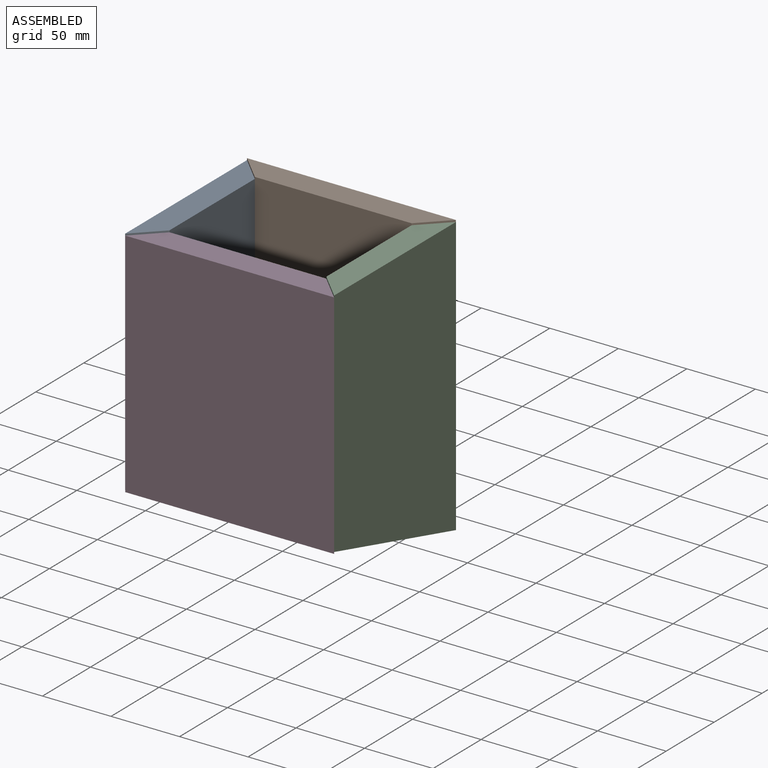
[diagram: assembled view]
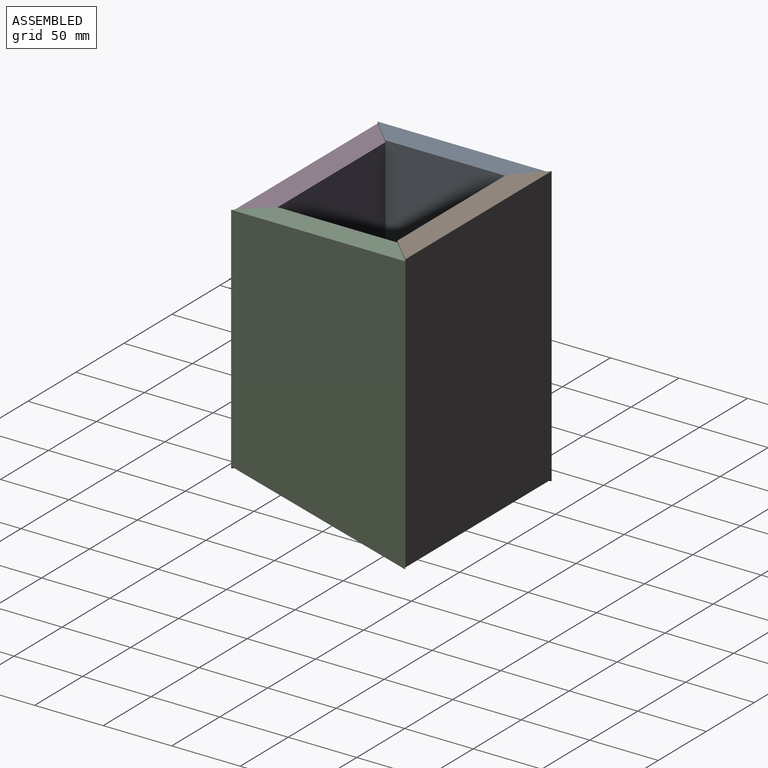
[diagram: assembled view, second angle]
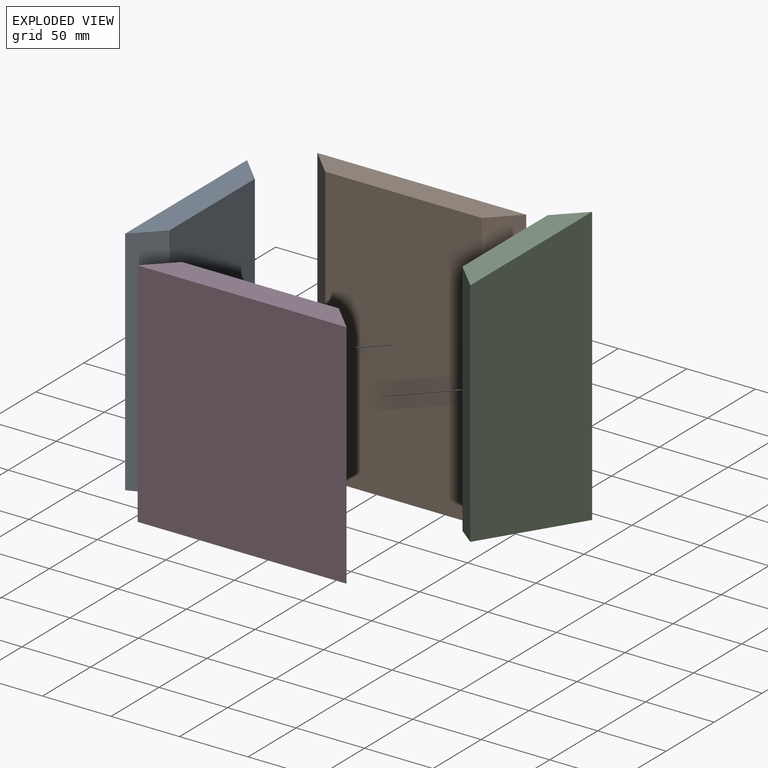
[diagram: exploded view]
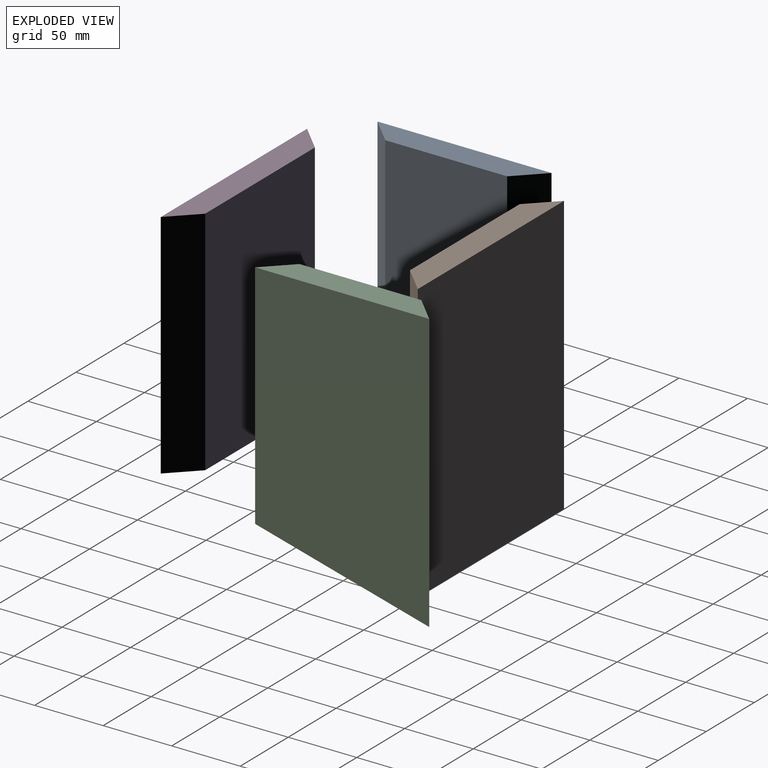
[diagram: exploded view, second angle]
ASSEMBLY  parts=4 mates=3
PART A: 6 faces, bbox 127x19.1x203.2 mm
  f0: plane 198.1x88.9mm, normal (0,-1,0), area 16551.9mm2, adj f1,f2,f4,f5
  f1: plane 127x34.03mm, normal (-0.26,0,-0.97), area 2129mm2, adj f0,f3,f4,f5
  f2: plane 127x19.05mm, normal (0,0,1), area 2056.4mm2, adj f0,f3,f4,f5
  f3: plane 203.2x127mm, normal (0,1,0), area 23645.5mm2, adj f1,f2,f4,f5
  f4: plane 203.2x19.05mm, normal (0.71,-0.71,0), area 5405.6mm2, adj f0,f1,f2,f3
  f5: plane 174.28x19.05mm, normal (-0.71,-0.71,0), area 4626.3mm2, adj f0,f1,f2,f3
PART B: 6 faces, bbox 152.4x19.1x203.2 mm
  f0: plane 152.4x19.05mm, normal (0,0,-1), area 2540.3mm2, adj f2,f3,f4,f5
  f1: plane 152.4x19.05mm, normal (0,0,1), area 2540.3mm2, adj f2,f3,f4,f5
  f2: plane 203.2x114.3mm, normal (0,-1,0), area 23225.8mm2, adj f0,f1,f4,f5
  f3: plane 203.2x152.4mm, normal (0,1,0), area 30967.7mm2, adj f0,f1,f4,f5
  f4: plane 203.2x19.05mm, normal (0.71,-0.71,0), area 5474.4mm2, adj f0,f1,f2,f3
  f5: plane 203.2x19.05mm, normal (-0.71,-0.71,0), area 5474.4mm2, adj f0,f1,f2,f3
PART C: 6 faces, bbox 127x19.1x203.2 mm
  f0: plane 127x19.05mm, normal (0,0,1), area 2056.4mm2, adj f2,f3,f4,f5
  f1: plane 127x34.03mm, normal (-0.26,0,-0.97), area 2129mm2, adj f2,f3,f4,f5
  f2: plane 198.1x88.9mm, normal (0,1,0), area 16551.9mm2, adj f0,f1,f4,f5
  f3: plane 203.2x127mm, normal (0,-1,0), area 23645.5mm2, adj f0,f1,f4,f5
  f4: plane 203.2x19.05mm, normal (0.71,0.71,0), area 5405.6mm2, adj f0,f1,f2,f3
  f5: plane 174.28x19.05mm, normal (-0.71,0.71,0), area 4626.3mm2, adj f0,f1,f2,f3
PART D: 6 faces, bbox 152.4x19.1x169.2 mm
  f0: plane 169.16x114.3mm, normal (0,-1,0), area 19335.4mm2, adj f1,f2,f4,f5
  f1: plane 152.4x19.05mm, normal (0,0,-1), area 2540.3mm2, adj f0,f3,f4,f5
  f2: plane 152.4x19.05mm, normal (0,0,1), area 2540.3mm2, adj f0,f3,f4,f5
  f3: plane 169.16x152.4mm, normal (0,1,0), area 25780.6mm2, adj f1,f2,f4,f5
  f4: plane 169.16x19.05mm, normal (0.71,-0.71,0), area 4557.4mm2, adj f0,f1,f2,f3
  f5: plane 169.16x19.05mm, normal (-0.71,-0.71,0), area 4557.4mm2, adj f0,f1,f2,f3
PLACE A rot(axis=(0,0,1),90deg) t=(-129.4,-100.5,-31.25)mm
PLACE B t=(-129.44,26.54,-29.98)mm
PLACE C rot(axis=(0,0,1),90deg) t=(4.05,26.5,-31.25)mm
PLACE D rot(axis=(-1,0,0),180deg) t=(-129.35,-100.46,170.67)mm
MATE fastened A.f4 <-> B.f5  axis (0.71,0.71,0) through (-119.91,17.01,71.62)mm
MATE fastened D.f5 <-> A.f5  axis (-0.71,0.71,0) through (-119.83,-90.93,86.09)mm
MATE fastened C.f5 <-> D.f4  axis (-0.71,-0.71,0) through (13.52,-90.93,86.09)mm
